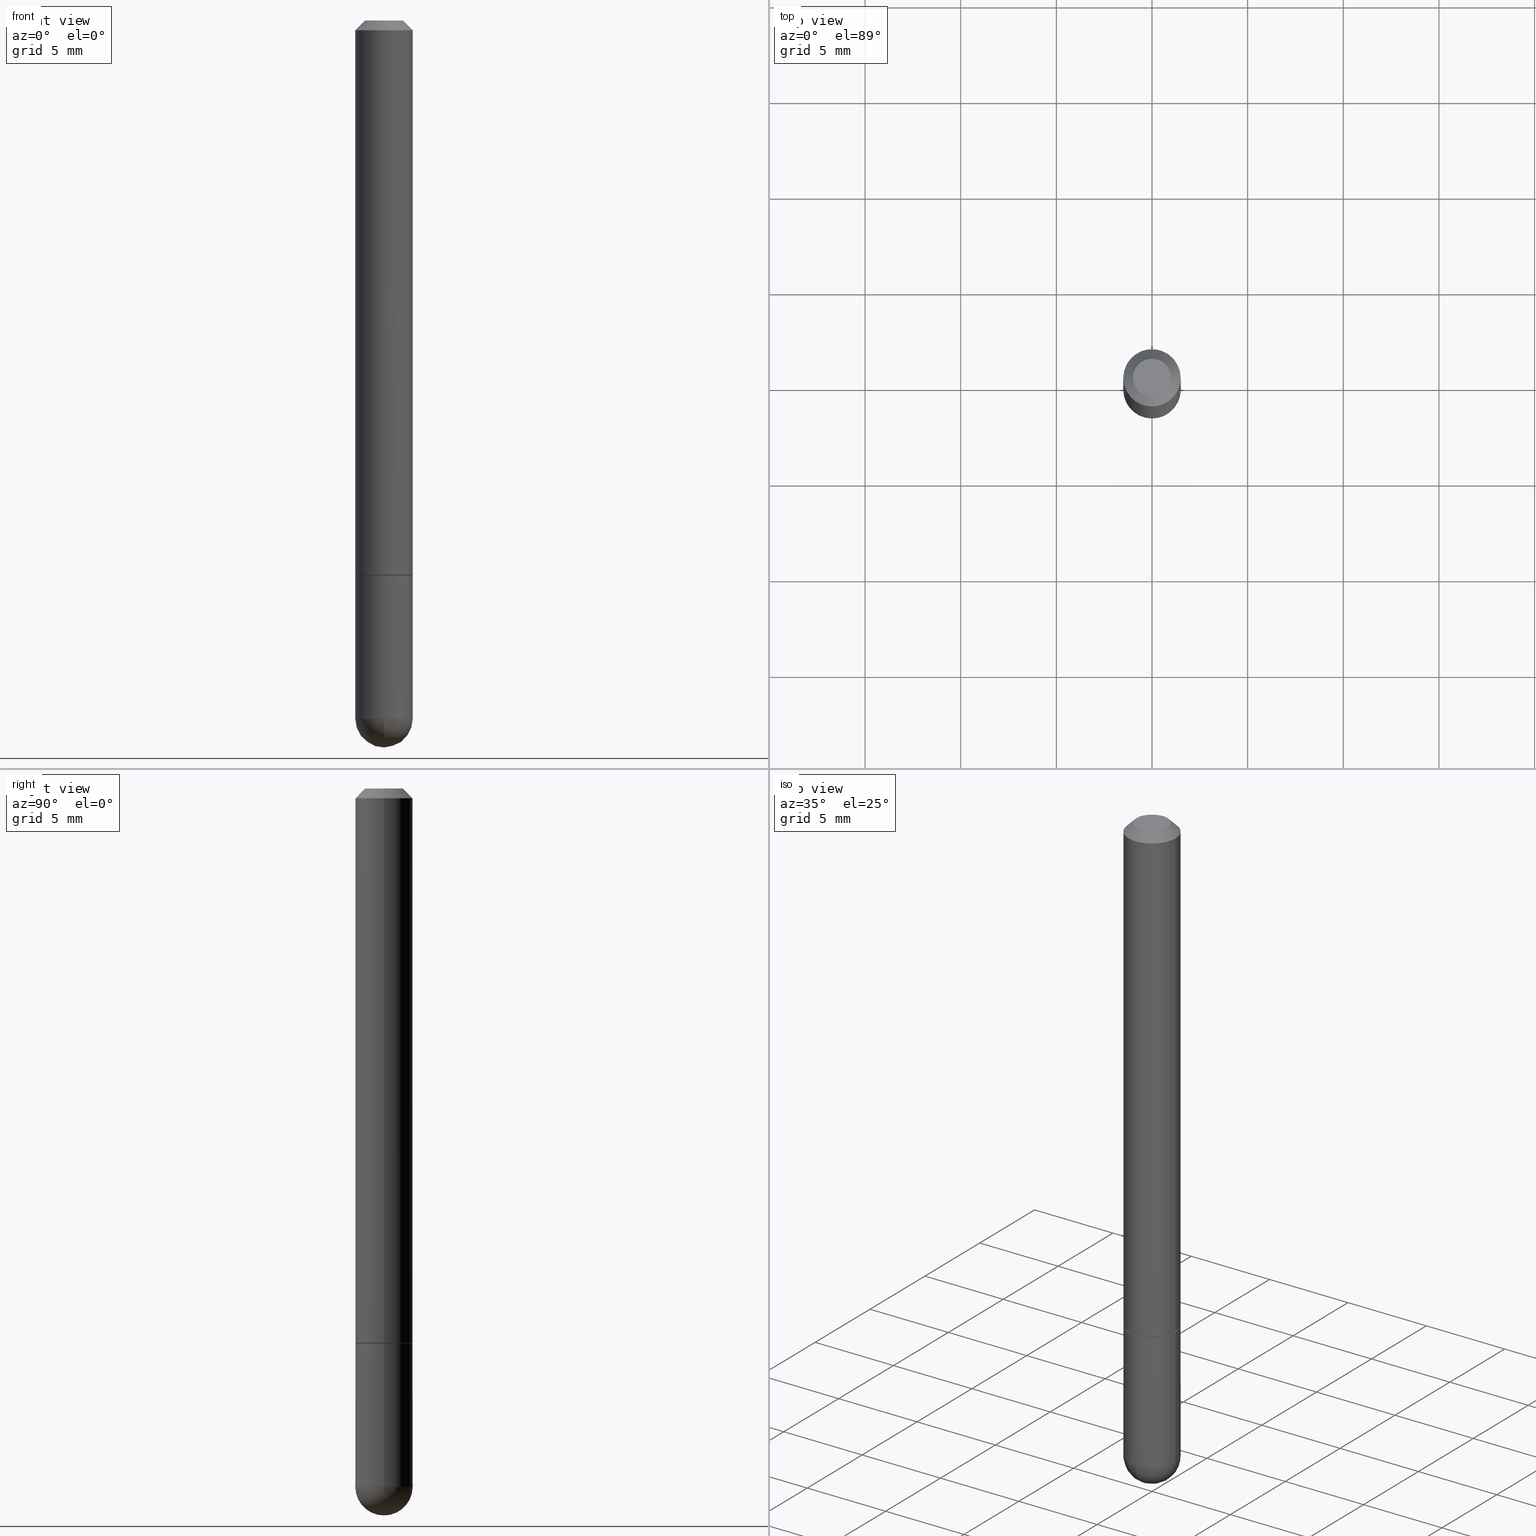
[diagram: canonical four-view strip — front | top / right | iso, engineering-drawing reading convention]
A machine part, canonical four-view strip (front | top / right | iso — engineering-drawing reading convention). The complete STEP part file that produces these views, byte-faithful:
ISO-10303-21;
HEADER;
FILE_DESCRIPTION (( 'STEP AP203' ),
    '1' );
FILE_NAME ('01999.STEP',
    '2024-02-21T16:34:37',
    ( '' ),
    ( '' ),
    'SwSTEP 2.0',
    'SolidWorks 2023',
    '' );
FILE_SCHEMA (( 'CONFIG_CONTROL_DESIGN' ));
ENDSEC;

DATA;
#1 = DIRECTION ( 'NONE',  ( -1.000000000000000000, 7.105427357601001070E-15, -4.926315508542082329E-29 ) ) ;
#2 = EDGE_CURVE ( 'NONE', #239, #206, #386, .T. ) ;
#3 = CIRCLE ( 'NONE', #258, 0.03905000000000004301 ) ;
#4 = DATE_AND_TIME ( #406, #141 ) ;
#5 = DIRECTION ( 'NONE',  ( 1.000000000000000000, -6.982962677686265133E-15, 0.000000000000000000 ) ) ;
#6 = CC_DESIGN_PERSON_AND_ORGANIZATION_ASSIGNMENT ( #34, #213, ( #373 ) ) ;
#7 = DIRECTION ( 'NONE',  ( -0.7071067811865467956, 2.468850131082249172E-15, -0.7071067811865482389 ) ) ;
#8 = DIRECTION ( 'NONE',  ( 1.000000000000000000, -6.982962677686265922E-15, 4.883557194083112340E-29 ) ) ;
#9 = CC_DESIGN_APPROVAL ( #49, ( #162 ) ) ;
#10 = FACE_OUTER_BOUND ( 'NONE', #240, .T. ) ;
#11 = ORIENTED_EDGE ( 'NONE', *, *, #154, .F. ) ;
#12 = FACE_OUTER_BOUND ( 'NONE', #198, .T. ) ;
#13 = ORIENTED_EDGE ( 'NONE', *, *, #403, .F. ) ;
#14 = CARTESIAN_POINT ( 'NONE',  ( 3.183141170014464762E-29, -5.491615626124592102E-15, -1.437049999999999939 ) ) ;
#15 = EDGE_CURVE ( 'NONE', #241, #261, #259, .T. ) ;
#16 = VERTEX_POINT ( 'NONE', #146 ) ;
#17 = CARTESIAN_POINT ( 'NONE',  ( 2.792236282902187945E-29, -3.986573392691102533E-15, -1.141799999999999704 ) ) ;
#18 = CONICAL_SURFACE ( 'NONE', #194, 0.05804999999999999744, 0.7853981633976233612 ) ;
#19 = ORIENTED_EDGE ( 'NONE', *, *, #388, .T. ) ;
#20 = APPROVAL ( #130, 'UNSPECIFIED' ) ;
#21 = VERTEX_POINT ( 'NONE', #407 ) ;
#22 = DIRECTION ( 'NONE',  ( -2.445468806185136877E-29, 3.491481338843145188E-15, 1.000000000000000000 ) ) ;
#23 = DIRECTION ( 'NONE',  ( 1.000000000000000000, -6.982962677686267499E-15, 0.000000000000000000 ) ) ;
#24 = AXIS2_PLACEMENT_3D ( 'NONE', #214, #8, #313 ) ;
#25 = CC_DESIGN_APPROVAL ( #20, ( #373 ) ) ;
#26 = DATE_AND_TIME ( #86, #402 ) ;
#27 = VERTEX_POINT ( 'NONE', #208 ) ;
#28 = DIRECTION ( 'NONE',  ( -2.445468806185136597E-29, 3.491481338843145583E-15, 1.000000000000000000 ) ) ;
#29 = PERSON_AND_ORGANIZATION ( #302, #231 ) ;
#30 = FACE_OUTER_BOUND ( 'NONE', #178, .T. ) ;
#31 = AXIS2_PLACEMENT_3D ( 'NONE', #57, #123, #369 ) ;
#32 = APPROVAL_DATE_TIME ( #410, #20 ) ;
#33 = DIRECTION ( 'NONE',  ( 2.438088387897960049E-29, -3.491481338843145188E-15, -1.000000000000000000 ) ) ;
#34 = PERSON_AND_ORGANIZATION ( #302, #231 ) ;
#35 = CARTESIAN_POINT ( 'NONE',  ( 0.05905000000000001914, -4.914347271455197089E-15, -1.437049999999999939 ) ) ;
#36 = SECURITY_CLASSIFICATION_LEVEL ( 'unclassified' ) ;
#37 = CARTESIAN_POINT ( 'NONE',  ( 0.05905000000000000526, -4.749420335452719692E-16, -0.02000000000000002123 ) ) ;
#38 = APPROVAL_STATUS ( 'not_yet_approved' ) ;
#39 = AXIS2_PLACEMENT_3D ( 'NONE', #48, #332, #358 ) ;
#40 = CARTESIAN_POINT ( 'NONE',  ( 0.05905000000000007465, -4.123439461173745750E-16, 2.879382386107504074E-30 ) ) ;
#41 = CARTESIAN_POINT ( 'NONE',  ( 0.000000000000000000, 0.000000000000000000, 0.000000000000000000 ) ) ;
#42 = ORIENTED_EDGE ( 'NONE', *, *, #242, .T. ) ;
#43 = CIRCLE ( 'NONE', #24, 0.05905000000000025506 ) ;
#44 = DIRECTION ( 'NONE',  ( 1.000000000000000000, -6.982962677686272233E-15, 0.000000000000000000 ) ) ;
#45 = ORIENTED_EDGE ( 'NONE', *, *, #217, .F. ) ;
#46 = EDGE_CURVE ( 'NONE', #83, #280, #274, .T. ) ;
#47 = ORIENTED_EDGE ( 'NONE', *, *, #403, .T. ) ;
#48 = CARTESIAN_POINT ( 'NONE',  ( 2.726846925636489647E-16, 0.03905000000000004301, -1.427451150169756154E-16 ) ) ;
#49 = APPROVAL ( #38, 'UNSPECIFIED' ) ;
#50 = EDGE_LOOP ( 'NONE', ( #45, #144, #117, #82 ) ) ;
#51 = AXIS2_PLACEMENT_3D ( 'NONE', #196, #385, #262 ) ;
#52 = ORIENTED_EDGE ( 'NONE', *, *, #190, .F. ) ;
#53 = DIMENSIONAL_EXPONENTS ( 1.000000000000000000, 0.000000000000000000, 0.000000000000000000, 0.000000000000000000, 0.000000000000000000, 0.000000000000000000, 0.000000000000000000 ) ;
#54 = EDGE_LOOP ( 'NONE', ( #366, #197 ) ) ;
#55 = EDGE_CURVE ( 'NONE', #241, #83, #401, .T. ) ;
#56 = CARTESIAN_POINT ( 'NONE',  ( 3.514260947928350449E-29, -5.017433257984542594E-15, -1.437049999999999939 ) ) ;
#57 = CARTESIAN_POINT ( 'NONE',  ( 2.792236282902187945E-29, -3.986573392691102533E-15, -1.141799999999999704 ) ) ;
#58 = AXIS2_PLACEMENT_3D ( 'NONE', #249, #1, #189 ) ;
#59 = ADVANCED_FACE ( 'NONE', ( #340 ), #345, .T. ) ;
#60 = DIRECTION ( 'NONE',  ( -2.445468806185136597E-29, 3.491481338843145583E-15, 1.000000000000000000 ) ) ;
#61 = DIRECTION ( 'NONE',  ( 1.000000000000000000, -6.982962677686266711E-15, 4.876176775795936353E-29 ) ) ;
#62 = APPROVAL_DATE_TIME ( #157, #220 ) ;
#63 = DIRECTION ( 'NONE',  ( 1.000000000000000000, -6.982962677686266711E-15, 4.876176775795936353E-29 ) ) ;
#64 = CIRCLE ( 'NONE', #107, 0.05905000000000000526 ) ;
#65 = CARTESIAN_POINT ( 'NONE',  ( 0.000000000000000000, 0.000000000000000000, 0.000000000000000000 ) ) ;
#66 = PERSON_AND_ORGANIZATION ( #302, #231 ) ;
#67 = PERSON_AND_ORGANIZATION ( #302, #231 ) ;
#68 = DIRECTION ( 'NONE',  ( -1.000000000000000000, 6.982962677686265922E-15, -4.876176775795935793E-29 ) ) ;
#69 = COORDINATED_UNIVERSAL_TIME_OFFSET ( 5, 0, .BEHIND. ) ;
#70 = PLANE ( 'NONE',  #226 ) ;
#71 = VECTOR ( 'NONE', #127, 39.37007874015748143 ) ;
#72 = LINE ( 'NONE', #283, #267 ) ;
#73 = EDGE_CURVE ( 'NONE', #16, #276, #85, .T. ) ;
#74 = DIRECTION ( 'NONE',  ( -2.445468806185136597E-29, 3.491481338843145583E-15, 1.000000000000000000 ) ) ;
#75 = ORIENTED_EDGE ( 'NONE', *, *, #168, .T. ) ;
#76 =( NAMED_UNIT ( * ) PLANE_ANGLE_UNIT ( ) SI_UNIT ( $, .RADIAN. ) );
#77 = ORIENTED_EDGE ( 'NONE', *, *, #55, .F. ) ;
#78 = ADVANCED_FACE ( 'NONE', ( #88 ), #207, .T. ) ;
#79 = CONICAL_SURFACE ( 'NONE', #312, 0.05804999999999999744, 0.7853981633976233612 ) ;
#80 = CC_DESIGN_SECURITY_CLASSIFICATION ( #292, ( #373 ) ) ;
#81 = PLANE ( 'NONE',  #39 ) ;
#82 = ORIENTED_EDGE ( 'NONE', *, *, #98, .T. ) ;
#83 = VERTEX_POINT ( 'NONE', #151 ) ;
#84 = DIRECTION ( 'NONE',  ( -1.000000000000000000, 6.982962677686265922E-15, -4.883557194083112340E-29 ) ) ;
#85 = CIRCLE ( 'NONE', #31, 0.05804999999999999744 ) ;
#86 = CALENDAR_DATE ( 2024, 21, 2 ) ;
#87 = DIRECTION ( 'NONE',  ( -2.445468806185136597E-29, 3.491481338843145583E-15, 1.000000000000000000 ) ) ;
#88 = FACE_OUTER_BOUND ( 'NONE', #278, .T. ) ;
#89 = DIRECTION ( 'NONE',  ( 1.000000000000000000, -6.982962677686272233E-15, 0.000000000000000000 ) ) ;
#90 = CARTESIAN_POINT ( 'NONE',  ( 0.05904999999999999832, -4.123439461173740327E-16, 2.879382386107500220E-30 ) ) ;
#91 = CC_DESIGN_DATE_AND_TIME_ASSIGNMENT ( #4, #309, ( #162 ) ) ;
#92 = CALENDAR_DATE ( 2024, 21, 2 ) ;
#93 = DIRECTION ( 'NONE',  ( -2.445468806185136597E-29, 3.491481338843145583E-15, 1.000000000000000000 ) ) ;
#94 = CALENDAR_DATE ( 2024, 21, 2 ) ;
#95 = DIRECTION ( 'NONE',  ( 1.000000000000000000, -6.982962677686266711E-15, 4.878561691827482436E-29 ) ) ;
#96 = PERSON_AND_ORGANIZATION_ROLE ( 'design_supplier' ) ;
#97 = CARTESIAN_POINT ( 'NONE',  ( 2.789790814096003463E-29, -3.983081911352260315E-15, -1.140799999999999814 ) ) ;
#98 = EDGE_CURVE ( 'NONE', #183, #27, #363, .T. ) ;
#99 = LOCAL_TIME ( 11, 34, 37.00000000000000000, #69 ) ;
#100 = AXIS2_PLACEMENT_3D ( 'NONE', #177, #409, #210 ) ;
#101 = APPROVAL_ROLE ( '' ) ;
#102 = CARTESIAN_POINT ( 'NONE',  ( 2.792236282902188505E-29, -3.986573392691103322E-15, -1.141799999999999926 ) ) ;
#103 = APPROVAL_STATUS ( 'not_yet_approved' ) ;
#104 = DIRECTION ( 'NONE',  ( -2.445468806185136597E-29, 3.491481338843145583E-15, 1.000000000000000000 ) ) ;
#105 = ADVANCED_FACE ( 'NONE', ( #182 ), #244, .T. ) ;
#106 = LINE ( 'NONE', #377, #248 ) ;
#107 = AXIS2_PLACEMENT_3D ( 'NONE', #252, #378, #159 ) ;
#108 = CC_DESIGN_DATE_AND_TIME_ASSIGNMENT ( #319, #124, ( #292 ) ) ;
#109 = CIRCLE ( 'NONE', #51, 0.05905000000000000526 ) ;
#110 = DIRECTION ( 'NONE',  ( 1.000000000000000000, -6.982962677686265922E-15, 4.876176775795935793E-29 ) ) ;
#111 = ORIENTED_EDGE ( 'NONE', *, *, #73, .T. ) ;
#112 = APPLICATION_CONTEXT ( 'configuration controlled 3d designs of mechanical parts and assemblies' ) ;
#113 = DIRECTION ( 'NONE',  ( -2.438088387897960049E-29, 3.491481338843145188E-15, 1.000000000000000000 ) ) ;
#114 = ORIENTED_EDGE ( 'NONE', *, *, #15, .F. ) ;
#115 = VERTEX_POINT ( 'NONE', #310 ) ;
#116 = AXIS2_PLACEMENT_3D ( 'NONE', #392, #113, #110 ) ;
#117 = ORIENTED_EDGE ( 'NONE', *, *, #132, .T. ) ;
#118 = EDGE_LOOP ( 'NONE', ( #42, #394, #270, #77, #265 ) ) ;
#119 = ADVANCED_FACE ( 'NONE', ( #30 ), #18, .T. ) ;
#120 = ORIENTED_EDGE ( 'NONE', *, *, #388, .F. ) ;
#121 = CARTESIAN_POINT ( 'NONE',  ( 4.890937612370278413E-31, -6.982962677686297772E-17, -0.02000000000000002123 ) ) ;
#122 = CIRCLE ( 'NONE', #174, 0.05905000000000014404 ) ;
#123 = DIRECTION ( 'NONE',  ( -2.445468806185136597E-29, 3.491481338843145583E-15, 1.000000000000000000 ) ) ;
#124 = DATE_TIME_ROLE ( 'classification_date' ) ;
#125 = ADVANCED_FACE ( 'NONE', ( #158 ), #279, .T. ) ;
#126 = DIRECTION ( 'NONE',  ( 0.7071067811865467956, -7.319954787623254468E-15, -0.7071067811865482389 ) ) ;
#127 = DIRECTION ( 'NONE',  ( -2.445468806185136877E-29, 3.491481338843145188E-15, 1.000000000000000000 ) ) ;
#128 =( GEOMETRIC_REPRESENTATION_CONTEXT ( 3 ) GLOBAL_UNCERTAINTY_ASSIGNED_CONTEXT ( ( #222 ) ) GLOBAL_UNIT_ASSIGNED_CONTEXT ( ( #300, #76, #229 ) ) REPRESENTATION_CONTEXT ( 'NONE', 'WORKASPACE' ) );
#129 = AXIS2_PLACEMENT_3D ( 'NONE', #341, #405, #304 ) ;
#130 = APPROVAL_STATUS ( 'not_yet_approved' ) ;
#131 = CARTESIAN_POINT ( 'NONE',  ( 3.131554243005667043E-46, -4.471029511141352822E-32, -1.280553747030126465E-17 ) ) ;
#132 = EDGE_CURVE ( 'NONE', #391, #183, #72, .T. ) ;
#133 = DIRECTION ( 'NONE',  ( 1.000000000000000000, -6.982962677686266711E-15, 4.876176775795936353E-29 ) ) ;
#134 = AXIS2_PLACEMENT_3D ( 'NONE', #236, #143, #269 ) ;
#135 = SPHERICAL_SURFACE ( 'NONE', #350, 0.05905000000000025506 ) ;
#136 = ORIENTED_EDGE ( 'NONE', *, *, #376, .F. ) ;
#137 = LINE ( 'NONE', #260, #167 ) ;
#138 = ORIENTED_EDGE ( 'NONE', *, *, #2, .F. ) ;
#139 = CARTESIAN_POINT ( 'NONE',  ( 2.792236282902187945E-29, -3.986573392691102533E-15, -1.141799999999999704 ) ) ;
#140 = ORIENTED_EDGE ( 'NONE', *, *, #217, .T. ) ;
#141 = LOCAL_TIME ( 11, 34, 37.00000000000000000, #221 ) ;
#142 = CARTESIAN_POINT ( 'NONE',  ( 3.131554243005667043E-46, -4.471029511141352822E-32, -1.280553747030126465E-17 ) ) ;
#143 = DIRECTION ( 'NONE',  ( 0.000000000000000000, 0.000000000000000000, 1.000000000000000000 ) ) ;
#144 = ORIENTED_EDGE ( 'NONE', *, *, #395, .F. ) ;
#145 = DESIGN_CONTEXT ( 'detailed design', #112, 'design' ) ;
#146 = CARTESIAN_POINT ( 'NONE',  ( -0.05804999999999999744, -3.568804880234141646E-15, -1.141799999999999704 ) ) ;
#147 = CIRCLE ( 'NONE', #215, 0.05905000000000000526 ) ;
#148 = CC_DESIGN_APPROVAL ( #220, ( #292 ) ) ;
#149 = EDGE_LOOP ( 'NONE', ( #364, #170, #308, #171 ) ) ;
#150 = DIRECTION ( 'NONE',  ( 1.000000000000000000, -6.982962677686263555E-15, 0.000000000000000000 ) ) ;
#151 = CARTESIAN_POINT ( 'NONE',  ( 0.05904999999999999832, -4.398917338808476664E-15, -1.141799999999999926 ) ) ;
#152 = ORIENTED_EDGE ( 'NONE', *, *, #2, .T. ) ;
#153 = AXIS2_PLACEMENT_3D ( 'NONE', #169, #201, #297 ) ;
#154 = EDGE_CURVE ( 'NONE', #280, #83, #379, .T. ) ;
#155 = PERSON_AND_ORGANIZATION ( #302, #231 ) ;
#156 = CARTESIAN_POINT ( 'NONE',  ( -0.05904999999999999832, -4.082427839871483465E-15, -1.141799999999999926 ) ) ;
#157 = DATE_AND_TIME ( #94, #330 ) ;
#158 = FACE_OUTER_BOUND ( 'NONE', #50, .T. ) ;
#159 = DIRECTION ( 'NONE',  ( 1.000000000000000000, -6.982962677686272233E-15, 0.000000000000000000 ) ) ;
#160 = ADVANCED_FACE ( 'NONE', ( #253 ), #187, .T. ) ;
#161 = CARTESIAN_POINT ( 'NONE',  ( 4.890937612370278413E-31, -6.982962677686297772E-17, -0.02000000000000002123 ) ) ;
#162 = PRODUCT_DEFINITION ( 'UNKNOWN', '', #373, #145 ) ;
#163 = DIRECTION ( 'NONE',  ( -2.445468806185136597E-29, 3.491481338843145583E-15, 1.000000000000000000 ) ) ;
#164 = PRODUCT_DEFINITION_SHAPE ( 'NONE', 'NONE',  #162 ) ;
#165 = FACE_OUTER_BOUND ( 'NONE', #237, .T. ) ;
#166 = ORIENTED_EDGE ( 'NONE', *, *, #247, .T. ) ;
#167 = VECTOR ( 'NONE', #264, 39.37007874015748854 ) ;
#168 = EDGE_CURVE ( 'NONE', #206, #27, #351, .T. ) ;
#169 = CARTESIAN_POINT ( 'NONE',  ( 4.890937612370278413E-31, -6.982962677686297772E-17, -0.02000000000000002123 ) ) ;
#170 = ORIENTED_EDGE ( 'NONE', *, *, #234, .T. ) ;
#171 = ORIENTED_EDGE ( 'NONE', *, *, #168, .F. ) ;
#172 = LINE ( 'NONE', #200, #205 ) ;
#173 = ORIENTED_EDGE ( 'NONE', *, *, #55, .T. ) ;
#174 = AXIS2_PLACEMENT_3D ( 'NONE', #97, #348, #245 ) ;
#175 = COORDINATED_UNIVERSAL_TIME_OFFSET ( 5, 0, .BEHIND. ) ;
#176 = DIRECTION ( 'NONE',  ( 1.000000000000000000, -6.982962677686266711E-15, 4.878561691827482436E-29 ) ) ;
#177 = CARTESIAN_POINT ( 'NONE',  ( 2.792236282902188505E-29, -3.986573392691103322E-15, -1.141799999999999926 ) ) ;
#178 = EDGE_LOOP ( 'NONE', ( #335, #19, #230, #13 ) ) ;
#179 = LOCAL_TIME ( 11, 34, 37.00000000000000000, #251 ) ;
#181 = DIRECTION ( 'NONE',  ( -2.445468806185136597E-29, 3.491481338843145583E-15, 1.000000000000000000 ) ) ;
#180 = AXIS2_PLACEMENT_3D ( 'NONE', #121, #60, #23 ) ;
#182 = FACE_OUTER_BOUND ( 'NONE', #359, .T. ) ;
#183 = VERTEX_POINT ( 'NONE', #411 ) ;
#184 = EDGE_CURVE ( 'NONE', #115, #404, #299, .T. ) ;
#185 = SHAPE_DEFINITION_REPRESENTATION ( #164, #282 ) ;
#186 = APPROVAL_PERSON_ORGANIZATION ( #285, #49, #306 ) ;
#187 = CYLINDRICAL_SURFACE ( 'NONE', #199, 0.05904999999999999832 ) ;
#188 = AXIS2_PLACEMENT_3D ( 'NONE', #56, #181, #89 ) ;
#189 = DIRECTION ( 'NONE',  ( -7.105427357601001070E-15, -1.000000000000000000, 0.000000000000000000 ) ) ;
#190 = EDGE_CURVE ( 'NONE', #21, #391, #209, .T. ) ;
#191 = APPROVAL_DATE_TIME ( #26, #49 ) ;
#192 = CARTESIAN_POINT ( 'NONE',  ( 0.05804999999999999744, -4.391934376130790650E-15, -1.141799999999999704 ) ) ;
#193 = CARTESIAN_POINT ( 'NONE',  ( 4.123439461174018893E-16, 0.05904999999999601540, -1.141800000000000148 ) ) ;
#194 = AXIS2_PLACEMENT_3D ( 'NONE', #367, #87, #290 ) ;
#195 = DIRECTION ( 'NONE',  ( -2.445468806185136597E-29, 3.491481338843145583E-15, 1.000000000000000000 ) ) ;
#196 = CARTESIAN_POINT ( 'NONE',  ( 3.514260947928350449E-29, -5.017433257984542594E-15, -1.437049999999999939 ) ) ;
#197 = ORIENTED_EDGE ( 'NONE', *, *, #73, .F. ) ;
#198 = EDGE_LOOP ( 'NONE', ( #303, #293, #114, #333 ) ) ;
#199 = AXIS2_PLACEMENT_3D ( 'NONE', #65, #284, #133 ) ;
#200 = CARTESIAN_POINT ( 'NONE',  ( -0.05904999999999999832, 4.195754854663391478E-16, -2.904631170795521892E-30 ) ) ;
#201 = DIRECTION ( 'NONE',  ( -2.445468806185136597E-29, 3.491481338843145583E-15, 1.000000000000000000 ) ) ;
#202 = ORIENTED_EDGE ( 'NONE', *, *, #327, .F. ) ;
#203 = DIRECTION ( 'NONE',  ( 0.7071067811866712516, -2.468850131083553553E-15, 0.7071067811864236718 ) ) ;
#204 = ORIENTED_EDGE ( 'NONE', *, *, #242, .F. ) ;
#205 = VECTOR ( 'NONE', #334, 39.37007874015748143 ) ;
#206 = VERTEX_POINT ( 'NONE', #384 ) ;
#207 = SPHERICAL_SURFACE ( 'NONE', #129, 0.05905000000000025506 ) ;
#208 = CARTESIAN_POINT ( 'NONE',  ( 0.05905000000000000526, -4.749420335452719692E-16, -0.02000000000000002123 ) ) ;
#209 = CIRCLE ( 'NONE', #356, 0.03905000000000004301 ) ;
#210 = DIRECTION ( 'NONE',  ( 1.000000000000000000, -6.982962677686265133E-15, 0.000000000000000000 ) ) ;
#211 = EDGE_CURVE ( 'NONE', #115, #261, #43, .T. ) ;
#212 = DIRECTION ( 'NONE',  ( -2.445468806185136597E-29, 3.491481338843145583E-15, 1.000000000000000000 ) ) ;
#213 = PERSON_AND_ORGANIZATION_ROLE ( 'creator' ) ;
#214 = CARTESIAN_POINT ( 'NONE',  ( 3.183141170014464762E-29, -5.491615626124592102E-15, -1.437049999999999939 ) ) ;
#215 = AXIS2_PLACEMENT_3D ( 'NONE', #382, #104, #357 ) ;
#216 = CARTESIAN_POINT ( 'NONE',  ( 4.123439461174083974E-16, 0.05904999999999487742, -1.437050000000000161 ) ) ;
#217 = EDGE_CURVE ( 'NONE', #21, #27, #219, .T. ) ;
#218 = CALENDAR_DATE ( 2024, 21, 2 ) ;
#219 = LINE ( 'NONE', #37, #408 ) ;
#220 = APPROVAL ( #103, 'UNSPECIFIED' ) ;
#221 = COORDINATED_UNIVERSAL_TIME_OFFSET ( 5, 0, .BEHIND. ) ;
#222 = UNCERTAINTY_MEASURE_WITH_UNIT (LENGTH_MEASURE( 1.000000000000000082E-05 ), #300, 'distance_accuracy_value', 'NONE');
#223 = DIRECTION ( 'NONE',  ( -1.000000000000000000, 6.982962677686267499E-15, 0.000000000000000000 ) ) ;
#224 = DIRECTION ( 'NONE',  ( 2.445468806185136597E-29, -3.491481338843145583E-15, -1.000000000000000000 ) ) ;
#225 = PERSON_AND_ORGANIZATION_ROLE ( 'design_owner' ) ;
#226 = AXIS2_PLACEMENT_3D ( 'NONE', #193, #33, #68 ) ;
#227 = DIRECTION ( 'NONE',  ( 1.000000000000000000, -6.982962677686272233E-15, 0.000000000000000000 ) ) ;
#228 = EDGE_LOOP ( 'NONE', ( #202, #362, #166, #173, #11 ) ) ;
#229 =( NAMED_UNIT ( * ) SI_UNIT ( $, .STERADIAN. ) SOLID_ANGLE_UNIT ( ) );
#230 = ORIENTED_EDGE ( 'NONE', *, *, #255, .F. ) ;
#231 = ORGANIZATION ( 'UNSPECIFIED', 'UNSPECIFIED', '' ) ;
#232 = CARTESIAN_POINT ( 'NONE',  ( -4.195754854663065087E-16, -0.05905000000000538291, -1.437049999999999716 ) ) ;
#233 = ORIENTED_EDGE ( 'NONE', *, *, #190, .T. ) ;
#234 = EDGE_CURVE ( 'NONE', #239, #183, #106, .T. ) ;
#235 = CARTESIAN_POINT ( 'NONE',  ( 0.05804999999999999744, -4.391934376130790650E-15, -1.141799999999999704 ) ) ;
#236 = CARTESIAN_POINT ( 'NONE',  ( 0.000000000000000000, 0.000000000000000000, 0.000000000000000000 ) ) ;
#237 = EDGE_LOOP ( 'NONE', ( #301, #233 ) ) ;
#238 = AXIS2_PLACEMENT_3D ( 'NONE', #374, #93, #61 ) ;
#239 = VERTEX_POINT ( 'NONE', #246 ) ;
#240 = EDGE_LOOP ( 'NONE', ( #120, #111, #47, #138 ) ) ;
#241 = VERTEX_POINT ( 'NONE', #35 ) ;
#242 = EDGE_CURVE ( 'NONE', #261, #298, #64, .T. ) ;
#243 = AXIS2_PLACEMENT_3D ( 'NONE', #102, #320, #5 ) ;
#244 = CYLINDRICAL_SURFACE ( 'NONE', #238, 0.05905000000000007465 ) ;
#245 = DIRECTION ( 'NONE',  ( 1.000000000000000000, -6.982962677686263555E-15, 0.000000000000000000 ) ) ;
#246 = CARTESIAN_POINT ( 'NONE',  ( -0.05905000000000014404, -1.606880283598219355E-15, -1.140799999999999814 ) ) ;
#247 = EDGE_CURVE ( 'NONE', #404, #241, #147, .T. ) ;
#248 = VECTOR ( 'NONE', #316, 39.37007874015748143 ) ;
#249 = CARTESIAN_POINT ( 'NONE',  ( 3.183141170014464762E-29, -5.491615626124592102E-15, -1.437049999999999939 ) ) ;
#250 = APPROVAL_PERSON_ORGANIZATION ( #381, #220, #281 ) ;
#251 = COORDINATED_UNIVERSAL_TIME_OFFSET ( 5, 0, .BEHIND. ) ;
#252 = CARTESIAN_POINT ( 'NONE',  ( 3.514260947928350449E-29, -5.017433257984542594E-15, -1.437049999999999939 ) ) ;
#253 = FACE_OUTER_BOUND ( 'NONE', #228, .T. ) ;
#254 = APPLICATION_CONTEXT ( 'configuration controlled 3d designs of mechanical parts and assemblies' ) ;
#255 = EDGE_CURVE ( 'NONE', #206, #239, #122, .T. ) ;
#256 = APPLICATION_PROTOCOL_DEFINITION ( 'international standard', 'config_control_design', 1994, #254 ) ;
#257 = AXIS2_PLACEMENT_3D ( 'NONE', #272, #212, #342 ) ;
#258 = AXIS2_PLACEMENT_3D ( 'NONE', #142, #268, #176 ) ;
#259 = CIRCLE ( 'NONE', #188, 0.05905000000000000526 ) ;
#260 = CARTESIAN_POINT ( 'NONE',  ( -0.05804999999999999744, -3.574103334582364048E-15, -1.141799999999999704 ) ) ;
#261 = VERTEX_POINT ( 'NONE', #216 ) ;
#262 = DIRECTION ( 'NONE',  ( 1.000000000000000000, -6.982962677686272233E-15, 0.000000000000000000 ) ) ;
#263 = ORIENTED_EDGE ( 'NONE', *, *, #98, .F. ) ;
#264 = DIRECTION ( 'NONE',  ( -0.7071067811866712516, 7.493145998870800655E-15, 0.7071067811864236718 ) ) ;
#265 = ORIENTED_EDGE ( 'NONE', *, *, #15, .T. ) ;
#266 = ADVANCED_FACE ( 'NONE', ( #380 ), #329, .T. ) ;
#267 = VECTOR ( 'NONE', #7, 39.37007874015748143 ) ;
#268 = DIRECTION ( 'NONE',  ( -2.445468806185136597E-29, 3.491481338843145583E-15, 1.000000000000000000 ) ) ;
#269 = DIRECTION ( 'NONE',  ( 1.000000000000000000, 0.000000000000000000, 0.000000000000000000 ) ) ;
#270 = ORIENTED_EDGE ( 'NONE', *, *, #46, .F. ) ;
#271 = ADVANCED_FACE ( 'NONE', ( #323 ), #70, .F. ) ;
#272 = CARTESIAN_POINT ( 'NONE',  ( 0.000000000000000000, 0.000000000000000000, 0.000000000000000000 ) ) ;
#273 = CIRCLE ( 'NONE', #153, 0.05905000000000000526 ) ;
#274 = CIRCLE ( 'NONE', #100, 0.05904999999999999832 ) ;
#275 = ORIENTED_EDGE ( 'NONE', *, *, #132, .F. ) ;
#276 = VERTEX_POINT ( 'NONE', #192 ) ;
#277 = ADVANCED_FACE ( 'NONE', ( #288 ), #322, .T. ) ;
#278 = EDGE_LOOP ( 'NONE', ( #346, #326, #136, #204 ) ) ;
#279 = CONICAL_SURFACE ( 'NONE', #393, 0.05905000000000000526, 0.7853981633974472798 ) ;
#280 = VERTEX_POINT ( 'NONE', #156 ) ;
#281 = APPROVAL_ROLE ( '' ) ;
#282 = ADVANCED_BREP_SHAPE_REPRESENTATION ( '01999', ( #318, #321, #134 ), #128 ) ;
#283 = CARTESIAN_POINT ( 'NONE',  ( -0.05905000000000000526, 3.425143193405111289E-16, -0.02000000000000002123 ) ) ;
#284 = DIRECTION ( 'NONE',  ( -2.445468806185136597E-29, 3.491481338843145583E-15, 1.000000000000000000 ) ) ;
#285 = PERSON_AND_ORGANIZATION ( #302, #231 ) ;
#286 = CIRCLE ( 'NONE', #343, 0.05804999999999999744 ) ;
#287 = DIRECTION ( 'NONE',  ( 2.445468806185136597E-29, -3.491481338843145583E-15, -1.000000000000000000 ) ) ;
#288 = FACE_OUTER_BOUND ( 'NONE', #149, .T. ) ;
#289 = EDGE_CURVE ( 'NONE', #27, #183, #273, .T. ) ;
#290 = DIRECTION ( 'NONE',  ( 1.000000000000000000, -6.982962677686272233E-15, 0.000000000000000000 ) ) ;
#291 = CARTESIAN_POINT ( 'NONE',  ( -0.03905000000000004301, 3.075995059520800222E-16, -1.280553747030329227E-17 ) ) ;
#292 = SECURITY_CLASSIFICATION ( '', '', #36 ) ;
#293 = ORIENTED_EDGE ( 'NONE', *, *, #211, .T. ) ;
#294 = CARTESIAN_POINT ( 'NONE',  ( -0.05905000000000001914, -4.082427839871483465E-15, -1.437049999999999939 ) ) ;
#295 = CC_DESIGN_PERSON_AND_ORGANIZATION_ASSIGNMENT ( #155, #375, ( #162 ) ) ;
#296 = ORIENTED_EDGE ( 'NONE', *, *, #46, .T. ) ;
#297 = DIRECTION ( 'NONE',  ( 1.000000000000000000, -6.982962677686267499E-15, 0.000000000000000000 ) ) ;
#298 = VERTEX_POINT ( 'NONE', #294 ) ;
#299 = CIRCLE ( 'NONE', #58, 0.05905000000000025506 ) ;
#300 =( CONVERSION_BASED_UNIT ( 'INCH', #336 ) LENGTH_UNIT ( ) NAMED_UNIT ( #53 ) );
#301 = ORIENTED_EDGE ( 'NONE', *, *, #395, .T. ) ;
#302 = PERSON ( 'UNSPECIFIED', 'UNSPECIFIED', 'UNSPECIFIED', ('UNSPECIFIED'), ('UNSPECIFIED'), ('UNSPECIFIED') ) ;
#303 = ORIENTED_EDGE ( 'NONE', *, *, #184, .F. ) ;
#304 = DIRECTION ( 'NONE',  ( 6.982962677686265922E-15, 1.000000000000000000, -4.626330217890349615E-15 ) ) ;
#305 = AXIS2_PLACEMENT_3D ( 'NONE', #353, #224, #355 ) ;
#306 = APPROVAL_ROLE ( '' ) ;
#307 = ADVANCED_FACE ( 'NONE', ( #12 ), #135, .T. ) ;
#308 = ORIENTED_EDGE ( 'NONE', *, *, #289, .F. ) ;
#309 = DATE_TIME_ROLE ( 'creation_date' ) ;
#310 = CARTESIAN_POINT ( 'NONE',  ( 3.330070981488499955E-29, -5.694171829508798064E-15, -1.496100000000000207 ) ) ;
#311 = VECTOR ( 'NONE', #203, 39.37007874015748854 ) ;
#312 = AXIS2_PLACEMENT_3D ( 'NONE', #139, #74, #44 ) ;
#314 = CLOSED_SHELL ( 'NONE', ( #59, #78, #307, #271, #160 ) ) ;
#313 = DIRECTION ( 'NONE',  ( 6.982962677686266711E-15, 1.000000000000000000, 0.000000000000000000 ) ) ;
#315 = EDGE_CURVE ( 'NONE', #276, #16, #286, .T. ) ;
#316 = DIRECTION ( 'NONE',  ( -2.445468806185136877E-29, 3.491481338843145188E-15, 1.000000000000000000 ) ) ;
#317 = APPLICATION_PROTOCOL_DEFINITION ( 'international standard', 'config_control_design', 1994, #112 ) ;
#318 = MANIFOLD_SOLID_BREP ( 'Body-Move/Copy2[1]', #314 ) ;
#319 = DATE_AND_TIME ( #92, #99 ) ;
#320 = DIRECTION ( 'NONE',  ( -2.445468806185136597E-29, 3.491481338843145583E-15, 1.000000000000000000 ) ) ;
#321 = MANIFOLD_SOLID_BREP ( 'Body-Move/Copy2[2]', #368 ) ;
#322 = CYLINDRICAL_SURFACE ( 'NONE', #339, 0.05905000000000007465 ) ;
#323 = FACE_OUTER_BOUND ( 'NONE', #337, .T. ) ;
#324 = FACE_OUTER_BOUND ( 'NONE', #54, .T. ) ;
#325 = PRODUCT ( '01999', '01999', '', ( #398 ) ) ;
#326 = ORIENTED_EDGE ( 'NONE', *, *, #184, .T. ) ;
#327 = EDGE_CURVE ( 'NONE', #298, #280, #172, .T. ) ;
#328 = DIRECTION ( 'NONE',  ( 6.982962677686265922E-15, 1.000000000000000000, -4.626330217890349615E-15 ) ) ;
#329 = CONICAL_SURFACE ( 'NONE', #305, 0.05905000000000000526, 0.7853981633974472798 ) ;
#330 = LOCAL_TIME ( 11, 34, 37.00000000000000000, #347 ) ;
#331 = CC_DESIGN_PERSON_AND_ORGANIZATION_ASSIGNMENT ( #352, #412, ( #292 ) ) ;
#332 = DIRECTION ( 'NONE',  ( 2.438088387897960049E-29, -3.491481338843145188E-15, -1.000000000000000000 ) ) ;
#333 = ORIENTED_EDGE ( 'NONE', *, *, #247, .F. ) ;
#334 = DIRECTION ( 'NONE',  ( -2.445468806185136877E-29, 3.491481338843145188E-15, 1.000000000000000000 ) ) ;
#335 = ORIENTED_EDGE ( 'NONE', *, *, #315, .T. ) ;
#336 = LENGTH_MEASURE_WITH_UNIT ( LENGTH_MEASURE( 0.02539999999999999897 ), #365 );
#337 = EDGE_LOOP ( 'NONE', ( #296, #389 ) ) ;
#338 = VECTOR ( 'NONE', #22, 39.37007874015748143 ) ;
#339 = AXIS2_PLACEMENT_3D ( 'NONE', #41, #163, #63 ) ;
#340 = FACE_OUTER_BOUND ( 'NONE', #118, .T. ) ;
#341 = CARTESIAN_POINT ( 'NONE',  ( 3.183141170014464762E-29, -5.491615626124592102E-15, -1.437049999999999939 ) ) ;
#342 = DIRECTION ( 'NONE',  ( 1.000000000000000000, -6.982962677686266711E-15, 4.876176775795936353E-29 ) ) ;
#343 = AXIS2_PLACEMENT_3D ( 'NONE', #17, #387, #227 ) ;
#344 = AXIS2_PLACEMENT_3D ( 'NONE', #372, #28, #150 ) ;
#345 = CYLINDRICAL_SURFACE ( 'NONE', #257, 0.05904999999999999832 ) ;
#346 = ORIENTED_EDGE ( 'NONE', *, *, #211, .F. ) ;
#347 = COORDINATED_UNIVERSAL_TIME_OFFSET ( 5, 0, .BEHIND. ) ;
#348 = DIRECTION ( 'NONE',  ( -2.445468806185136597E-29, 3.491481338843145583E-15, 1.000000000000000000 ) ) ;
#349 = ADVANCED_FACE ( 'NONE', ( #165 ), #81, .F. ) ;
#350 = AXIS2_PLACEMENT_3D ( 'NONE', #14, #84, #328 ) ;
#351 = LINE ( 'NONE', #40, #71 ) ;
#352 = PERSON_AND_ORGANIZATION ( #302, #231 ) ;
#353 = CARTESIAN_POINT ( 'NONE',  ( 4.890937612370278413E-31, -6.982962677686297772E-17, -0.02000000000000002123 ) ) ;
#354 = ADVANCED_FACE ( 'NONE', ( #10 ), #79, .T. ) ;
#355 = DIRECTION ( 'NONE',  ( -1.000000000000000000, 6.982962677686267499E-15, 0.000000000000000000 ) ) ;
#356 = AXIS2_PLACEMENT_3D ( 'NONE', #131, #195, #95 ) ;
#357 = DIRECTION ( 'NONE',  ( 1.000000000000000000, -6.982962677686272233E-15, 0.000000000000000000 ) ) ;
#358 = DIRECTION ( 'NONE',  ( -1.000000000000000000, 6.982962677686265922E-15, -4.876176775795935793E-29 ) ) ;
#359 = EDGE_LOOP ( 'NONE', ( #399, #152, #75, #263 ) ) ;
#360 = PRODUCT_RELATED_PRODUCT_CATEGORY ( 'detail', '', ( #325 ) ) ;
#361 = APPROVAL_PERSON_ORGANIZATION ( #29, #20, #101 ) ;
#362 = ORIENTED_EDGE ( 'NONE', *, *, #376, .T. ) ;
#363 = CIRCLE ( 'NONE', #180, 0.05905000000000000526 ) ;
#364 = ORIENTED_EDGE ( 'NONE', *, *, #255, .T. ) ;
#365 =( LENGTH_UNIT ( ) NAMED_UNIT ( * ) SI_UNIT ( $, .METRE. ) );
#366 = ORIENTED_EDGE ( 'NONE', *, *, #315, .F. ) ;
#367 = CARTESIAN_POINT ( 'NONE',  ( 2.792236282902187945E-29, -3.986573392691102533E-15, -1.141799999999999704 ) ) ;
#368 = CLOSED_SHELL ( 'NONE', ( #119, #277, #266, #125, #105, #354, #400, #349 ) ) ;
#369 = DIRECTION ( 'NONE',  ( 1.000000000000000000, -6.982962677686272233E-15, 0.000000000000000000 ) ) ;
#370 = ORIENTED_EDGE ( 'NONE', *, *, #289, .T. ) ;
#371 = CC_DESIGN_PERSON_AND_ORGANIZATION_ASSIGNMENT ( #66, #225, ( #325 ) ) ;
#372 = CARTESIAN_POINT ( 'NONE',  ( 2.789790814096003463E-29, -3.983081911352260315E-15, -1.140799999999999814 ) ) ;
#373 = PRODUCT_DEFINITION_FORMATION_WITH_SPECIFIED_SOURCE ( 'ANY', '', #325, .NOT_KNOWN. ) ;
#374 = CARTESIAN_POINT ( 'NONE',  ( 0.000000000000000000, 0.000000000000000000, 0.000000000000000000 ) ) ;
#375 = PERSON_AND_ORGANIZATION_ROLE ( 'creator' ) ;
#376 = EDGE_CURVE ( 'NONE', #298, #404, #109, .T. ) ;
#377 = CARTESIAN_POINT ( 'NONE',  ( -0.05905000000000007465, 4.195754854663396902E-16, -2.904631170795525395E-30 ) ) ;
#378 = DIRECTION ( 'NONE',  ( -2.445468806185136597E-29, 3.491481338843145583E-15, 1.000000000000000000 ) ) ;
#379 = CIRCLE ( 'NONE', #243, 0.05904999999999999832 ) ;
#380 = FACE_OUTER_BOUND ( 'NONE', #397, .T. ) ;
#381 = PERSON_AND_ORGANIZATION ( #302, #231 ) ;
#382 = CARTESIAN_POINT ( 'NONE',  ( 3.514260947928350449E-29, -5.017433257984542594E-15, -1.437049999999999939 ) ) ;
#383 = CC_DESIGN_PERSON_AND_ORGANIZATION_ASSIGNMENT ( #67, #96, ( #373 ) ) ;
#384 = CARTESIAN_POINT ( 'NONE',  ( 0.05905000000000014404, -4.395425857469635235E-15, -1.140799999999999814 ) ) ;
#385 = DIRECTION ( 'NONE',  ( -2.445468806185136597E-29, 3.491481338843145583E-15, 1.000000000000000000 ) ) ;
#386 = CIRCLE ( 'NONE', #344, 0.05905000000000014404 ) ;
#387 = DIRECTION ( 'NONE',  ( -2.445468806185136597E-29, 3.491481338843145583E-15, 1.000000000000000000 ) ) ;
#388 = EDGE_CURVE ( 'NONE', #16, #239, #137, .T. ) ;
#389 = ORIENTED_EDGE ( 'NONE', *, *, #154, .T. ) ;
#390 = LINE ( 'NONE', #235, #311 ) ;
#391 = VERTEX_POINT ( 'NONE', #291 ) ;
#392 = CARTESIAN_POINT ( 'NONE',  ( 2.792236282902188505E-29, -3.986573392691103322E-15, -1.141799999999999926 ) ) ;
#393 = AXIS2_PLACEMENT_3D ( 'NONE', #161, #287, #223 ) ;
#394 = ORIENTED_EDGE ( 'NONE', *, *, #327, .T. ) ;
#395 = EDGE_CURVE ( 'NONE', #391, #21, #3, .T. ) ;
#396 = PLANE ( 'NONE',  #116 ) ;
#397 = EDGE_LOOP ( 'NONE', ( #52, #140, #370, #275 ) ) ;
#398 = MECHANICAL_CONTEXT ( 'NONE', #254, 'mechanical' ) ;
#399 = ORIENTED_EDGE ( 'NONE', *, *, #234, .F. ) ;
#400 = ADVANCED_FACE ( 'NONE', ( #324 ), #396, .F. ) ;
#401 = LINE ( 'NONE', #90, #338 ) ;
#402 = LOCAL_TIME ( 11, 34, 37.00000000000000000, #175 ) ;
#403 = EDGE_CURVE ( 'NONE', #276, #206, #390, .T. ) ;
#404 = VERTEX_POINT ( 'NONE', #232 ) ;
#405 = DIRECTION ( 'NONE',  ( -1.000000000000000000, 6.982962677686265922E-15, -4.883557194083112340E-29 ) ) ;
#406 = CALENDAR_DATE ( 2024, 21, 2 ) ;
#407 = CARTESIAN_POINT ( 'NONE',  ( 0.03905000000000004301, -3.714222401791252845E-16, -1.280553747029901208E-17 ) ) ;
#408 = VECTOR ( 'NONE', #126, 39.37007874015748143 ) ;
#409 = DIRECTION ( 'NONE',  ( -2.445468806185136597E-29, 3.491481338843145583E-15, 1.000000000000000000 ) ) ;
#410 = DATE_AND_TIME ( #218, #179 ) ;
#411 = CARTESIAN_POINT ( 'NONE',  ( -0.05905000000000000526, 3.425143193405111289E-16, -0.02000000000000002123 ) ) ;
#412 = PERSON_AND_ORGANIZATION_ROLE ( 'classification_officer' ) ;
ENDSEC;
END-ISO-10303-21;
